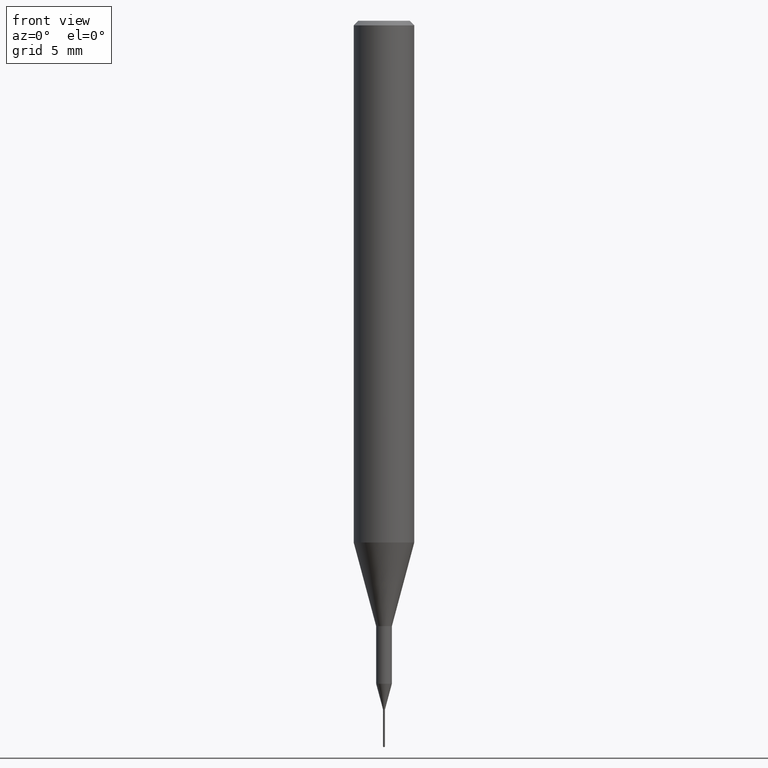
[diagram: clean part render]
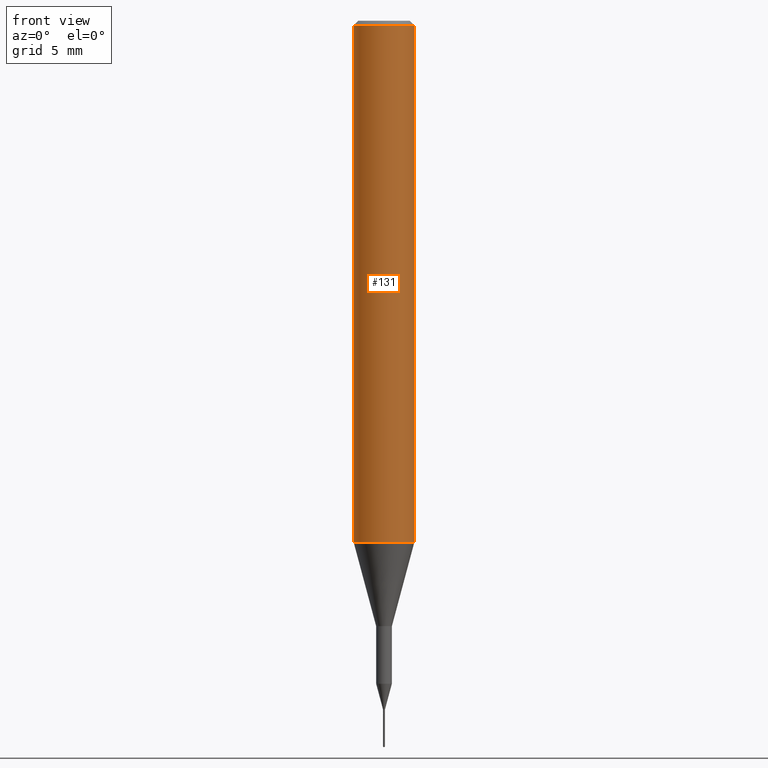
[diagram: same view with one face highlighted and labeled with its STEP entity id]
A machine part, front view. The second image highlights one B-rep face of the part: STEP entity #131.
In plain terms, the highlighted cylindrical surface (edge-blend (fillet) strip) has radius 1.5875 mm, axis along (-0, 0, 1).
Its self-contained STEP definition (entity closure, byte-faithful):
#9 = DIRECTION ( 'NONE',  ( 1.000000000000000000, -6.982962677686264344E-15, 0.000000000000000000 ) ) ;
#26 = FACE_OUTER_BOUND ( 'NONE', #220, .T. ) ;
#27 = EDGE_CURVE ( 'NONE', #487, #317, #205, .T. ) ;
#42 = CIRCLE ( 'NONE', #100, 0.06250000000000000000 ) ;
#58 = CARTESIAN_POINT ( 'NONE',  ( 2.634730117954813298E-29, -3.761696332605275695E-15, -1.077392650149939346 ) ) ;
#84 = AXIS2_PLACEMENT_3D ( 'NONE', #504, #95, #279 ) ;
#95 = DIRECTION ( 'NONE',  ( -2.445468806185136597E-29, 3.491481338843145583E-15, 1.000000000000000000 ) ) ;
#100 = AXIS2_PLACEMENT_3D ( 'NONE', #140, #554, #329 ) ;
#108 = CARTESIAN_POINT ( 'NONE',  ( 0.06250000000000000000, -4.691678049070463404E-16, -0.009375000000000062103 ) ) ;
#131 = ADVANCED_FACE ( 'NONE', ( #26 ), #252, .T. ) ;
#132 = DIRECTION ( 'NONE',  ( -2.445468806185136877E-29, 3.491481338843145188E-15, 1.000000000000000000 ) ) ;
#134 = VERTEX_POINT ( 'NONE', #281 ) ;
#140 = CARTESIAN_POINT ( 'NONE',  ( 2.292627005798580623E-31, -3.273263755165470801E-17, -0.009375000000000062103 ) ) ;
#205 = LINE ( 'NONE', #339, #562 ) ;
#220 = EDGE_LOOP ( 'NONE', ( #496, #448, #378, #271 ) ) ;
#239 = DIRECTION ( 'NONE',  ( -2.445468806185136597E-29, 3.491481338843145583E-15, 1.000000000000000000 ) ) ;
#252 = CYLINDRICAL_SURFACE ( 'NONE', #84, 0.06250000000000006939 ) ;
#264 = EDGE_CURVE ( 'NONE', #363, #317, #42, .T. ) ;
#271 = ORIENTED_EDGE ( 'NONE', *, *, #264, .F. ) ;
#279 = DIRECTION ( 'NONE',  ( 1.000000000000000000, -6.982962677686266711E-15, 4.876176775795935793E-29 ) ) ;
#281 = CARTESIAN_POINT ( 'NONE',  ( -0.06250000000000012490, -3.317607122755211895E-15, -1.077392650149939346 ) ) ;
#289 = CARTESIAN_POINT ( 'NONE',  ( -0.06250000000000000000, -1.453125275228401137E-15, -0.009375000000000062103 ) ) ;
#305 = CIRCLE ( 'NONE', #489, 0.06250000000000012490 ) ;
#317 = VERTEX_POINT ( 'NONE', #108 ) ;
#329 = DIRECTION ( 'NONE',  ( 1.000000000000000000, -6.982962677686266711E-15, 0.000000000000000000 ) ) ;
#339 = CARTESIAN_POINT ( 'NONE',  ( 0.06250000000000006939, -4.364351673553921624E-16, 3.047610484872463374E-30 ) ) ;
#342 = LINE ( 'NONE', #521, #454 ) ;
#363 = VERTEX_POINT ( 'NONE', #289 ) ;
#369 = EDGE_CURVE ( 'NONE', #134, #487, #305, .T. ) ;
#378 = ORIENTED_EDGE ( 'NONE', *, *, #27, .T. ) ;
#397 = EDGE_CURVE ( 'NONE', #134, #363, #342, .T. ) ;
#436 = DIRECTION ( 'NONE',  ( -2.445468806185136877E-29, 3.491481338843145188E-15, 1.000000000000000000 ) ) ;
#448 = ORIENTED_EDGE ( 'NONE', *, *, #369, .T. ) ;
#454 = VECTOR ( 'NONE', #132, 39.37007874015748143 ) ;
#487 = VERTEX_POINT ( 'NONE', #527 ) ;
#489 = AXIS2_PLACEMENT_3D ( 'NONE', #58, #239, #9 ) ;
#496 = ORIENTED_EDGE ( 'NONE', *, *, #397, .F. ) ;
#504 = CARTESIAN_POINT ( 'NONE',  ( 0.000000000000000000, 0.000000000000000000, 0.000000000000000000 ) ) ;
#521 = CARTESIAN_POINT ( 'NONE',  ( -0.06250000000000006939, 4.440892098500631092E-16, -3.074334431409319267E-30 ) ) ;
#527 = CARTESIAN_POINT ( 'NONE',  ( 0.06250000000000012490, -4.198131499960668153E-15, -1.077392650149939346 ) ) ;
#554 = DIRECTION ( 'NONE',  ( -2.445468806185136597E-29, 3.491481338843145583E-15, 1.000000000000000000 ) ) ;
#562 = VECTOR ( 'NONE', #436, 39.37007874015748143 ) ;